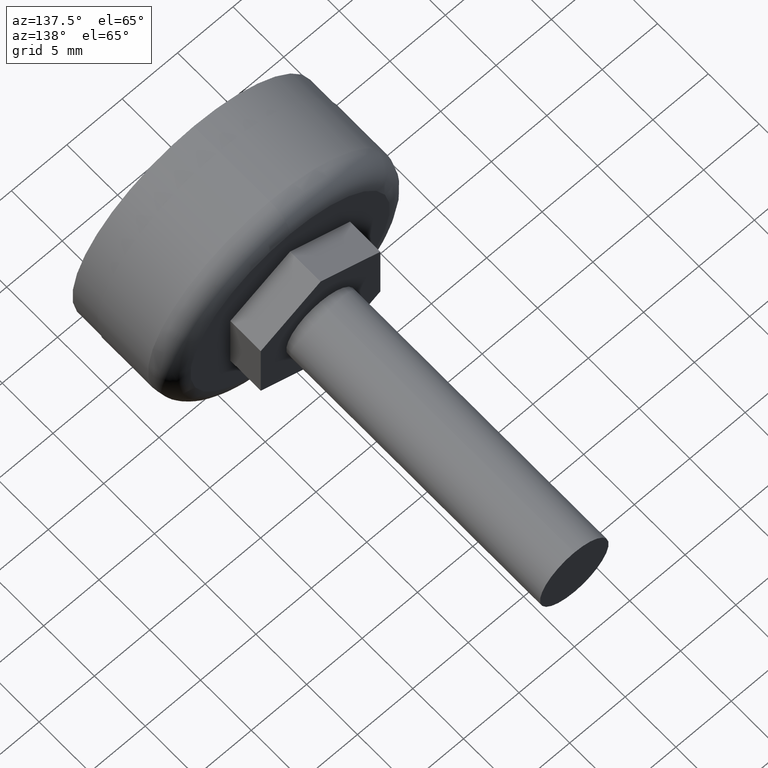
[diagram: clean part render]
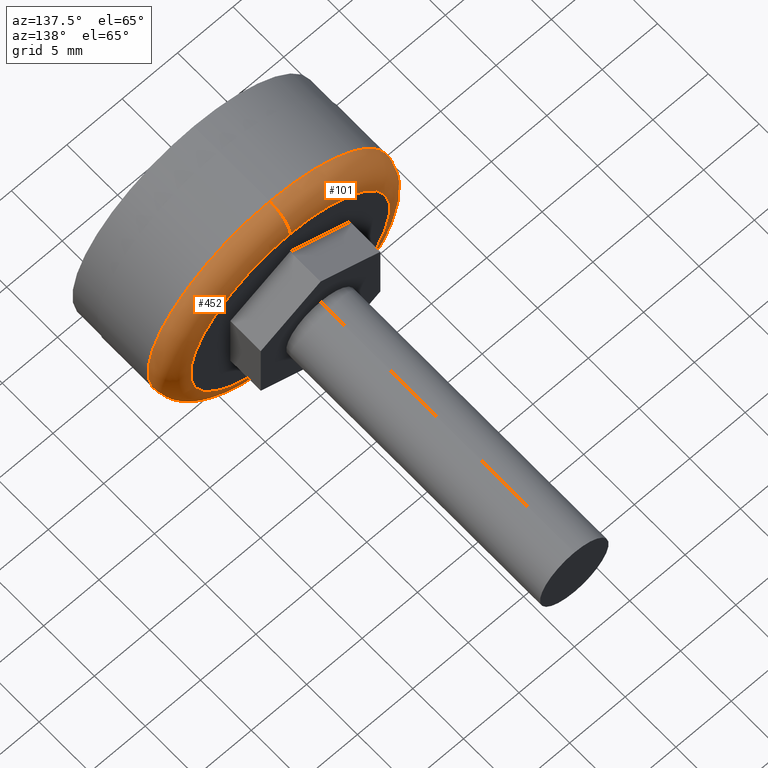
[diagram: same view with one multi-face feature highlighted, each face labeled with its STEP entity id]
A machine part, auxiliary view. The highlighted faces form ONE feature: a constant-radius fillet chain: 2 tangent blend faces with common blend radius 2 mm. The faces share edges in the B-rep.
Their STEP definitions:
[1] entity #101 (Torus):
#6 = AXIS2_PLACEMENT_3D ( 'NONE', #584, #566, #553 ) ;
#14 = EDGE_CURVE ( 'NONE', #66, #88, #339, .T. ) ;
#18 = EDGE_CURVE ( 'NONE', #83, #88, #287, .T. ) ;
#26 = EDGE_CURVE ( 'NONE', #79, #83, #310, .T. ) ;
#29 = AXIS2_PLACEMENT_3D ( 'NONE', #557, #558, #585 ) ;
#49 = AXIS2_PLACEMENT_3D ( 'NONE', #562, #564, #588 ) ;
#52 = AXIS2_PLACEMENT_3D ( 'NONE', #195, #211, #216 ) ;
#66 = VERTEX_POINT ( 'NONE', #161 ) ;
#79 = VERTEX_POINT ( 'NONE', #199 ) ;
#83 = VERTEX_POINT ( 'NONE', #196 ) ;
#88 = VERTEX_POINT ( 'NONE', #186 ) ;
#101 = ADVANCED_FACE ( 'NONE', ( #257 ), #260, .T. ) ;
#104 = CARTESIAN_POINT ( 'NONE',  ( 0.0000000000000000000, 5.000000000000000000, 0.0000000000000000000 ) ) ;
#107 = DIRECTION ( 'NONE',  ( -0.0000000000000000000, -1.000000000000000000, -0.0000000000000000000 ) ) ;
#141 = DIRECTION ( 'NONE',  ( 0.0000000000000000000, 0.0000000000000000000, 1.000000000000000000 ) ) ;
#161 = CARTESIAN_POINT ( 'NONE',  ( 1.347111479062088400E-015, 5.000000000000000000, 11.00000000000000000 ) ) ;
#186 = CARTESIAN_POINT ( 'NONE',  ( 0.0000000000000000000, 7.000000000000000000, 9.000000000000000000 ) ) ;
#195 = CARTESIAN_POINT ( 'NONE',  ( 0.0000000000000000000, 5.000000000000000000, 0.0000000000000000000 ) ) ;
#196 = CARTESIAN_POINT ( 'NONE',  ( 1.224646799147353300E-015, 7.000000000000000000, -9.000000000000000000 ) ) ;
#199 = CARTESIAN_POINT ( 'NONE',  ( 0.0000000000000000000, 5.000000000000000000, -11.00000000000000000 ) ) ;
#211 = DIRECTION ( 'NONE',  ( 0.0000000000000000000, 1.000000000000000000, 0.0000000000000000000 ) ) ;
#216 = DIRECTION ( 'NONE',  ( 0.0000000000000000000, 0.0000000000000000000, 1.000000000000000000 ) ) ;
#233 = AXIS2_PLACEMENT_3D ( 'NONE', #104, #107, #141 ) ;
#257 = FACE_OUTER_BOUND ( 'NONE', #506, .T. ) ;
#260 = TOROIDAL_SURFACE ( 'NONE', #52, 9.000000000000000000, 2.000000000000000000 ) ;
#287 = CIRCLE ( 'NONE', #29, 9.000000000000000000 ) ;
#310 = CIRCLE ( 'NONE', #49, 2.000000000000000000 ) ;
#339 = CIRCLE ( 'NONE', #6, 2.000000000000000000 ) ;
#348 = EDGE_CURVE ( 'NONE', #66, #79, #355, .T. ) ;
#355 = CIRCLE ( 'NONE', #233, 11.00000000000000000 ) ;
#460 = ORIENTED_EDGE ( 'NONE', *, *, #18, .F. ) ;
#473 = ORIENTED_EDGE ( 'NONE', *, *, #348, .F. ) ;
#506 = EDGE_LOOP ( 'NONE', ( #515, #473, #532, #460 ) ) ;
#515 = ORIENTED_EDGE ( 'NONE', *, *, #26, .F. ) ;
#532 = ORIENTED_EDGE ( 'NONE', *, *, #14, .T. ) ;
#553 = DIRECTION ( 'NONE',  ( 0.0000000000000000000, 0.0000000000000000000, 1.000000000000000000 ) ) ;
#557 = CARTESIAN_POINT ( 'NONE',  ( 0.0000000000000000000, 7.000000000000000000, 0.0000000000000000000 ) ) ;
#558 = DIRECTION ( 'NONE',  ( 0.0000000000000000000, 1.000000000000000000, 0.0000000000000000000 ) ) ;
#562 = CARTESIAN_POINT ( 'NONE',  ( 1.102182119232617700E-015, 5.000000000000000000, -9.000000000000000000 ) ) ;
#564 = DIRECTION ( 'NONE',  ( 1.000000000000000000, -0.0000000000000000000, 1.224646799147353200E-016 ) ) ;
#566 = DIRECTION ( 'NONE',  ( -1.000000000000000000, 0.0000000000000000000, 0.0000000000000000000 ) ) ;
#584 = CARTESIAN_POINT ( 'NONE',  ( 0.0000000000000000000, 5.000000000000000000, 9.000000000000000000 ) ) ;
#585 = DIRECTION ( 'NONE',  ( 0.0000000000000000000, 0.0000000000000000000, 1.000000000000000000 ) ) ;
#588 = DIRECTION ( 'NONE',  ( 1.224646799147353500E-016, 0.0000000000000000000, -1.000000000000000000 ) ) ;
[2] entity #452 (Torus):
#5 = EDGE_CURVE ( 'NONE', #88, #83, #290, .T. ) ;
#6 = AXIS2_PLACEMENT_3D ( 'NONE', #584, #566, #553 ) ;
#13 = EDGE_CURVE ( 'NONE', #79, #66, #336, .T. ) ;
#14 = EDGE_CURVE ( 'NONE', #66, #88, #339, .T. ) ;
#26 = EDGE_CURVE ( 'NONE', #79, #83, #310, .T. ) ;
#34 = AXIS2_PLACEMENT_3D ( 'NONE', #61, #84, #87 ) ;
#49 = AXIS2_PLACEMENT_3D ( 'NONE', #562, #564, #588 ) ;
#51 = AXIS2_PLACEMENT_3D ( 'NONE', #563, #589, #595 ) ;
#61 = CARTESIAN_POINT ( 'NONE',  ( 0.0000000000000000000, 7.000000000000000000, 0.0000000000000000000 ) ) ;
#66 = VERTEX_POINT ( 'NONE', #161 ) ;
#79 = VERTEX_POINT ( 'NONE', #199 ) ;
#83 = VERTEX_POINT ( 'NONE', #196 ) ;
#84 = DIRECTION ( 'NONE',  ( 0.0000000000000000000, 1.000000000000000000, 0.0000000000000000000 ) ) ;
#87 = DIRECTION ( 'NONE',  ( 0.0000000000000000000, 0.0000000000000000000, 1.000000000000000000 ) ) ;
#88 = VERTEX_POINT ( 'NONE', #186 ) ;
#161 = CARTESIAN_POINT ( 'NONE',  ( 1.347111479062088400E-015, 5.000000000000000000, 11.00000000000000000 ) ) ;
#186 = CARTESIAN_POINT ( 'NONE',  ( 0.0000000000000000000, 7.000000000000000000, 9.000000000000000000 ) ) ;
#196 = CARTESIAN_POINT ( 'NONE',  ( 1.224646799147353300E-015, 7.000000000000000000, -9.000000000000000000 ) ) ;
#199 = CARTESIAN_POINT ( 'NONE',  ( 0.0000000000000000000, 5.000000000000000000, -11.00000000000000000 ) ) ;
#229 = AXIS2_PLACEMENT_3D ( 'NONE', #410, #428, #448 ) ;
#290 = CIRCLE ( 'NONE', #34, 9.000000000000000000 ) ;
#310 = CIRCLE ( 'NONE', #49, 2.000000000000000000 ) ;
#336 = CIRCLE ( 'NONE', #51, 11.00000000000000000 ) ;
#339 = CIRCLE ( 'NONE', #6, 2.000000000000000000 ) ;
#374 = TOROIDAL_SURFACE ( 'NONE', #229, 9.000000000000000000, 2.000000000000000000 ) ;
#406 = FACE_OUTER_BOUND ( 'NONE', #544, .T. ) ;
#410 = CARTESIAN_POINT ( 'NONE',  ( 0.0000000000000000000, 5.000000000000000000, 0.0000000000000000000 ) ) ;
#428 = DIRECTION ( 'NONE',  ( 0.0000000000000000000, 1.000000000000000000, 0.0000000000000000000 ) ) ;
#448 = DIRECTION ( 'NONE',  ( 0.0000000000000000000, 0.0000000000000000000, 1.000000000000000000 ) ) ;
#452 = ADVANCED_FACE ( 'NONE', ( #406 ), #374, .T. ) ;
#492 = ORIENTED_EDGE ( 'NONE', *, *, #14, .F. ) ;
#497 = ORIENTED_EDGE ( 'NONE', *, *, #5, .F. ) ;
#510 = ORIENTED_EDGE ( 'NONE', *, *, #13, .F. ) ;
#521 = ORIENTED_EDGE ( 'NONE', *, *, #26, .T. ) ;
#544 = EDGE_LOOP ( 'NONE', ( #510, #521, #497, #492 ) ) ;
#553 = DIRECTION ( 'NONE',  ( 0.0000000000000000000, 0.0000000000000000000, 1.000000000000000000 ) ) ;
#562 = CARTESIAN_POINT ( 'NONE',  ( 1.102182119232617700E-015, 5.000000000000000000, -9.000000000000000000 ) ) ;
#563 = CARTESIAN_POINT ( 'NONE',  ( 0.0000000000000000000, 5.000000000000000000, 0.0000000000000000000 ) ) ;
#564 = DIRECTION ( 'NONE',  ( 1.000000000000000000, -0.0000000000000000000, 1.224646799147353200E-016 ) ) ;
#566 = DIRECTION ( 'NONE',  ( -1.000000000000000000, 0.0000000000000000000, 0.0000000000000000000 ) ) ;
#584 = CARTESIAN_POINT ( 'NONE',  ( 0.0000000000000000000, 5.000000000000000000, 9.000000000000000000 ) ) ;
#588 = DIRECTION ( 'NONE',  ( 1.224646799147353500E-016, 0.0000000000000000000, -1.000000000000000000 ) ) ;
#589 = DIRECTION ( 'NONE',  ( -0.0000000000000000000, -1.000000000000000000, -0.0000000000000000000 ) ) ;
#595 = DIRECTION ( 'NONE',  ( 0.0000000000000000000, 0.0000000000000000000, 1.000000000000000000 ) ) ;